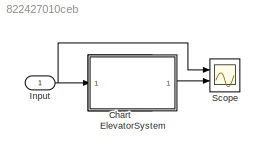
MODEL slx_822427010ceb
KIND model
CONFIG AbsTol = auto
CONFIG EnableMultiTasking = off
CONFIG FixedStep = auto
CONFIG MaxStep = auto
CONFIG MinStep = auto
CONFIG RelTol = 1e-3
CONFIG SampleTimeConstraint = Unconstrained
CONFIG SolverName = ode45
CONFIG StartTime = 0.0
CONFIG StopTime = 20
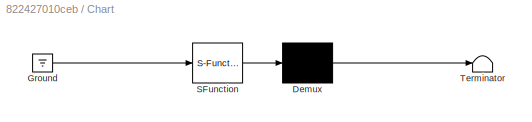
BLOCK [SubSystem] Chart
  ErrorFcn = Stateflow.Translate.translate
  PermitHierarchicalResolution = ExplicitOnly
  Ports = []
  RequestExecContextInheritance = off
  SFBlockType = Chart
  TreatAsAtomicUnit = on
BLOCK [Demux] Chart/ Demux 
  Outputs = 1
  Ports = [1, 1]
BLOCK [Ground] Chart/ Ground 
BLOCK [S-Function] Chart/ SFunction 
  EnableBusSupport = on
  FunctionName = sf_sfun
  PortCounts = [1 1]
  Ports = [1, 1]
  SFcnIsStateOwnerBlock = off
  SFunctionDeploymentMode = off
  Tag = Stateflow S-Function 3
BLOCK [Terminator] Chart/ Terminator 
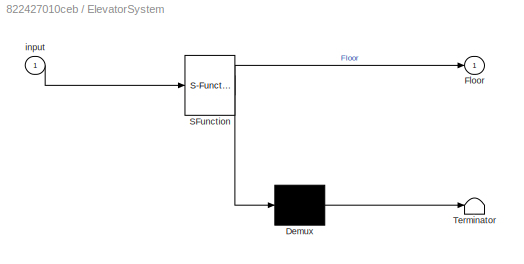
BLOCK [SubSystem] ElevatorSystem
  ErrorFcn = Stateflow.Translate.translate
  PermitHierarchicalResolution = ExplicitOnly
  Ports = [1, 1]
  RequestExecContextInheritance = off
  SFBlockType = Chart
  TreatAsAtomicUnit = on
BLOCK [Demux] ElevatorSystem/ Demux 
  Outputs = 1
  Ports = [1, 1]
BLOCK [S-Function] ElevatorSystem/ SFunction 
  EnableBusSupport = on
  FunctionName = sf_sfun
  PortCounts = [1 2]
  Ports = [1, 2]
  SFcnIsStateOwnerBlock = off
  SFunctionDeploymentMode = off
  Tag = Stateflow S-Function 1
BLOCK [Terminator] ElevatorSystem/ Terminator 
BLOCK [Outport] ElevatorSystem/Floor
BLOCK [Inport] ElevatorSystem/input
BLOCK [Inport] Input
  Interpolate = off
BLOCK [Scope] Scope
  Floating = off
  NumInputPorts = 2
  Ports = [2]
  ScopeSpecificationString = Simulink.scopes.TimeScopeBlockCfg('CurrentConfiguration', extmgr.ConfigurationSet(extmgr.Configuration('Core','General UI',true),extmgr.Configuration('Core','Source UI',true),extmgr.Configuration('Sources','WiredSimulink',true),extmgr.Configuration('Visuals','Time Domain',true,'SerializedDisplays',{struct('MinYLimReal','-0.625','MaxYLimReal','5.625','YLabelReal','','MinYLimMag','0.00000','MaxYLimM...<+2036ch>
LINE ElevatorSystem:1 -> Scope:2
NET Input:1 -> ElevatorSystem:1, Scope:1
note: NET lines group one-source signal fan-out (src -> all destinations, sorted); 1:1 wires keep LINE
CHART ElevatorSystem states=17 transitions=40
  STATE_LABEL 'ModelLift'
  STATE_LABEL 'LiftLocation\n'
  STATE_LABEL 'FloorFive\nentry:\nFloor =5;\nopendoor = goto - Floor +1\n'
  STATE_LABEL 'FloorFour\nentry:\nFloor = 4;\nopendoor = goto - Floor +1\n'
  STATE_LABEL 'FloorThree\nentry:\nFloor = 3;\nopendoor = goto - Floor +1\n'
  STATE_LABEL 'FloorTwo\nentry:\nFloor = 2;\nopendoor = goto - Floor +1\n'
  STATE_LABEL 'FloorOne\nentry:\nFloor = 1;\nopendoor = goto - Floor +1\nduring:\nwait = 1+1;'
  STATE_LABEL '[goto==0]'
  STATE_LABEL '[goto<Floor]{doorOpened=0}'
  STATE_LABEL '[goto>Floor]{doorOpened=0}'
  STATE_LABEL '[goto==0]'
  STATE_LABEL '[goto<Floor]{doorOpened=0}'
  STATE_LABEL '[goto>Floor]{doorOpened=0}'
  STATE_LABEL '[goto==0]'
  STATE_LABEL '[goto<Floor]{doorOpened=0}'
  STATE_LABEL '[goto>Floor]{doorOpened=0}'
  STATE_LABEL '[goto==0]'
  STATE_LABEL '[goto<Floor]{doorOpened=0}'
  STATE_LABEL '[goto>Floor]{doorOpened=0}'
  STATE_LABEL '[goto==0]'
  STATE_LABEL 'H'
  STATE_LABEL 'DoorState'
  STATE_LABEL 'OpenDoor\nexit:\n'
  STATE_LABEL 'CloseDoor\n%goto = queue(1);'
  STATE_LABEL 'after(2,sec)'
  STATE_LABEL '[opendoor==1]'
  STATE_LABEL '[doorOpened==0]'
  STATE_LABEL '{floorReached=1}'
  STATE_LABEL 'after(1,sec){doorOpened=1}'
  STATE_LABEL 'LiftLocation\n'
  STATE_LABEL 'FloorFive\nentry:\nFloor =5;\nopendoor = goto - Floor +1\n'
  STATE_LABEL 'FloorFour\nentry:\nFloor = 4;\nopendoor = goto - Floor +1\n'
  STATE_LABEL 'FloorThree\nentry:\nFloor = 3;\nopendoor = goto - Floor +1\n'
  STATE_LABEL 'FloorTwo\nentry:\nFloor = 2;\nopendoor = goto - Floor +1\n'
  STATE_LABEL 'FloorOne\nentry:\nFloor = 1;\nopendoor = goto - Floor +1\nduring:\nwait = 1+1;'
  STATE_LABEL '[goto==0]'
  STATE_LABEL '[goto<Floor]{doorOpened=0}'
  STATE_LABEL '[goto>Floor]{doorOpened=0}'
  STATE_LABEL '[goto==0]'
  STATE_LABEL '[goto<Floor]{doorOpened=0}'
CHART Chart states=0 transitions=0
CHART  states=0 transitions=0
CHART  states=0 transitions=0
